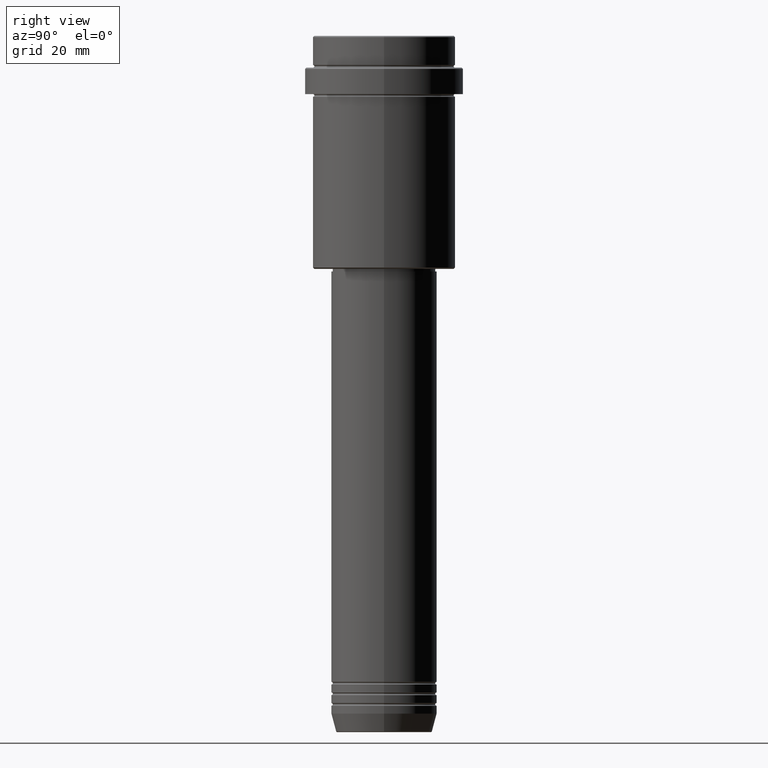
[diagram: clean part render]
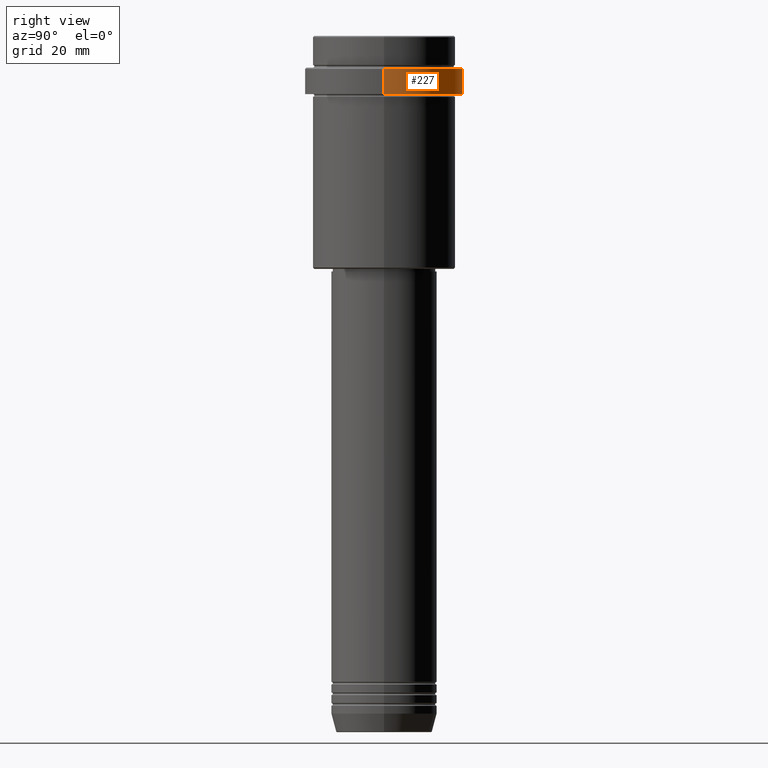
[diagram: same view with one face highlighted and labeled with its STEP entity id]
A machine part, right view. The second image highlights one B-rep face of the part: STEP entity #227.
In plain terms, the highlighted cylindrical surface (partial cylindrical patch) has radius 30 mm, axis along (-0, -0, 1).
Its self-contained STEP definition (entity closure, byte-faithful):
#17 = VERTEX_POINT ( 'NONE', #1009 ) ;
#133 = CIRCLE ( 'NONE', #312, 30.00000000000000000 ) ;
#172 = AXIS2_PLACEMENT_3D ( 'NONE', #823, #276, #287 ) ;
#173 = CYLINDRICAL_SURFACE ( 'NONE', #172, 30.00000000000000000 ) ;
#186 = ORIENTED_EDGE ( 'NONE', *, *, #444, .T. ) ;
#213 = DIRECTION ( 'NONE',  ( 1.000000000000000000, 0.000000000000000000, 0.000000000000000000 ) ) ;
#222 = CARTESIAN_POINT ( 'NONE',  ( 30.00000000000000000, 0.000000000000000000, -12.50000000000000888 ) ) ;
#227 = ADVANCED_FACE ( 'NONE', ( #733 ), #173, .T. ) ;
#276 = DIRECTION ( 'NONE',  ( -0.000000000000000000, -0.000000000000000000, 1.000000000000000000 ) ) ;
#285 = DIRECTION ( 'NONE',  ( 1.000000000000000000, 0.000000000000000000, 0.000000000000000000 ) ) ;
#287 = DIRECTION ( 'NONE',  ( 1.000000000000000000, 0.000000000000000000, 0.000000000000000000 ) ) ;
#290 = EDGE_LOOP ( 'NONE', ( #594, #314, #186, #625 ) ) ;
#312 = AXIS2_PLACEMENT_3D ( 'NONE', #1236, #692, #285 ) ;
#314 = ORIENTED_EDGE ( 'NONE', *, *, #582, .T. ) ;
#316 = CARTESIAN_POINT ( 'NONE',  ( 0.000000000000000000, 0.000000000000000000, -22.00000000000000355 ) ) ;
#386 = CIRCLE ( 'NONE', #1181, 29.99999999999999645 ) ;
#387 = VERTEX_POINT ( 'NONE', #649 ) ;
#444 = EDGE_CURVE ( 'NONE', #17, #846, #133, .T. ) ;
#570 = VECTOR ( 'NONE', #847, 1000.000000000000000 ) ;
#582 = EDGE_CURVE ( 'NONE', #941, #17, #1057, .T. ) ;
#594 = ORIENTED_EDGE ( 'NONE', *, *, #1157, .T. ) ;
#625 = ORIENTED_EDGE ( 'NONE', *, *, #1128, .F. ) ;
#649 = CARTESIAN_POINT ( 'NONE',  ( 29.99999999999999645, 0.000000000000000000, -22.00000000000000355 ) ) ;
#692 = DIRECTION ( 'NONE',  ( 0.000000000000000000, 0.000000000000000000, -1.000000000000000000 ) ) ;
#733 = FACE_OUTER_BOUND ( 'NONE', #290, .T. ) ;
#752 = DIRECTION ( 'NONE',  ( -0.000000000000000000, -0.000000000000000000, 1.000000000000000000 ) ) ;
#820 = CARTESIAN_POINT ( 'NONE',  ( -29.99999999999999645, 3.673940397442058389E-15, -22.00000000000000355 ) ) ;
#823 = CARTESIAN_POINT ( 'NONE',  ( 0.000000000000000000, 0.000000000000000000, 0.000000000000000000 ) ) ;
#825 = LINE ( 'NONE', #1276, #570 ) ;
#835 = VECTOR ( 'NONE', #843, 1000.000000000000000 ) ;
#843 = DIRECTION ( 'NONE',  ( -0.000000000000000000, -0.000000000000000000, 1.000000000000000000 ) ) ;
#846 = VERTEX_POINT ( 'NONE', #222 ) ;
#847 = DIRECTION ( 'NONE',  ( -0.000000000000000000, -0.000000000000000000, 1.000000000000000000 ) ) ;
#941 = VERTEX_POINT ( 'NONE', #820 ) ;
#1009 = CARTESIAN_POINT ( 'NONE',  ( -30.00000000000000000, 3.673940397442059178E-15, -12.50000000000000888 ) ) ;
#1057 = LINE ( 'NONE', #1067, #835 ) ;
#1067 = CARTESIAN_POINT ( 'NONE',  ( -30.00000000000000000, 3.673940397442059178E-15, 0.000000000000000000 ) ) ;
#1128 = EDGE_CURVE ( 'NONE', #387, #846, #825, .T. ) ;
#1157 = EDGE_CURVE ( 'NONE', #387, #941, #386, .T. ) ;
#1181 = AXIS2_PLACEMENT_3D ( 'NONE', #316, #752, #213 ) ;
#1236 = CARTESIAN_POINT ( 'NONE',  ( 0.000000000000000000, 0.000000000000000000, -12.50000000000000888 ) ) ;
#1276 = CARTESIAN_POINT ( 'NONE',  ( 30.00000000000000000, 0.000000000000000000, 0.000000000000000000 ) ) ;